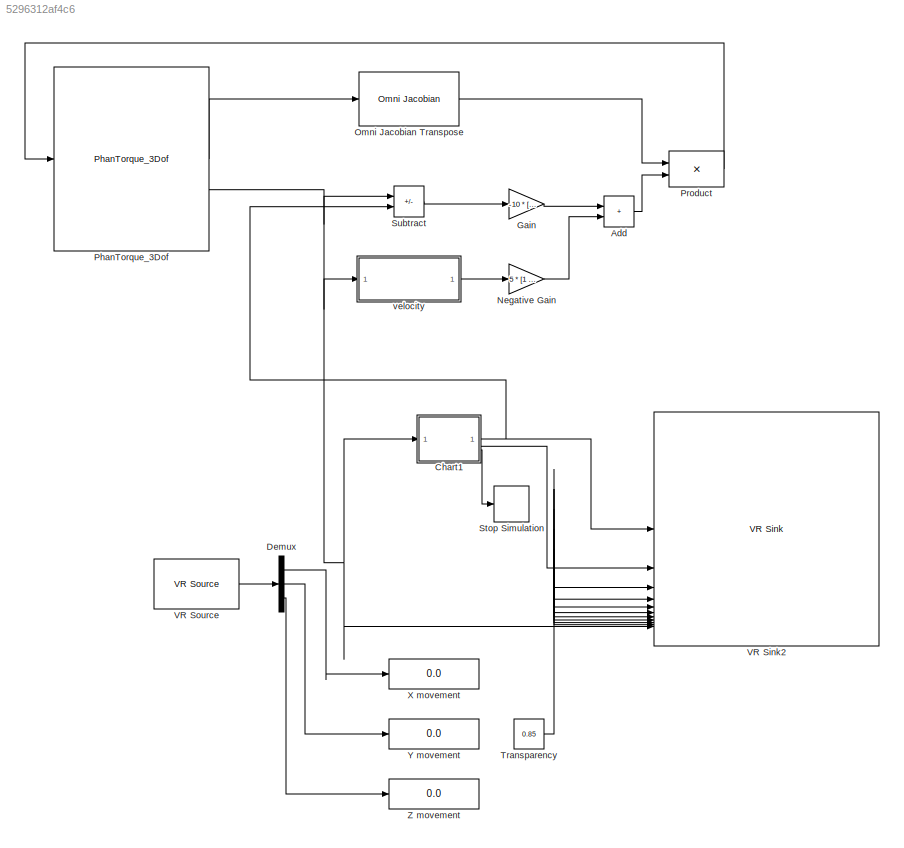
MODEL slx_5296312af4c6
KIND model
CONFIG AbsTol = auto
CONFIG EnableMultiTasking = off
CONFIG FixedStep = 0.001
CONFIG MaxStep = auto
CONFIG MinStep = auto
CONFIG RelTol = 1e-3
CONFIG SampleTimeConstraint = Unconstrained
CONFIG SolverName = FixedStepDiscrete
CONFIG StartTime = 0.0
CONFIG StopTime = inf
BLOCK [Sum] Add
  IconShape = rectangular
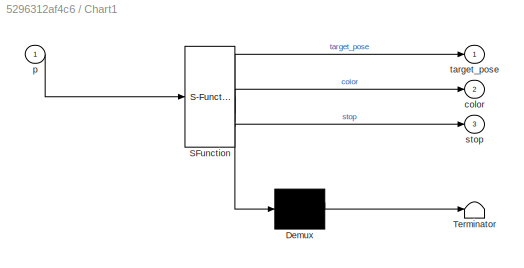
BLOCK [SubSystem] Chart1
  ErrorFcn = Stateflow.Translate.translate
  PermitHierarchicalResolution = ExplicitOnly
  SFBlockType = Chart
  TreatAsAtomicUnit = on
BLOCK [Demux] Chart1/ Demux 
  Outputs = 1
BLOCK [S-Function] Chart1/ SFunction 
  EnableBusSupport = on
  FunctionName = sf_sfun
  PortCounts = [1 4]
  SFcnIsStateOwnerBlock = off
  SFunctionDeploymentMode = off
  Tag = Stateflow S-Function 1
BLOCK [Terminator] Chart1/ Terminator 
BLOCK [Outport] Chart1/color
  Port = 2
BLOCK [Inport] Chart1/p
BLOCK [Outport] Chart1/stop
  Port = 3
BLOCK [Outport] Chart1/target_pose
BLOCK [Demux] Demux
  Outputs = 3
BLOCK [Gain] Gain
  Gain = -10 * [1 0 0; 0 1 0; 0 0 0]
  Multiplication = Matrix(K*u)
BLOCK [Gain] Negative Gain
  Gain = 5 * [1 0 0; 0 -1 0; 0 0 0]
  Multiplication = Matrix(K*u)
BLOCK [Reference] Omni Jacobian Transpose  REF=PhanTorque_3Dof_Library_64Bits/Omni Jacobian
  SourceBlock = PhanTorque_3Dof_Library_64Bits/Omni Jacobian
BLOCK [Reference] PhanTorque_3Dof  REF=PhanTorque_3Dof_Library_64Bits/PhanTorque_3Dof
  SourceBlock = PhanTorque_3Dof_Library_64Bits/PhanTorque_3Dof
BLOCK [Product] Product
  Multiplication = Matrix(*)
BLOCK [Stop] Stop Simulation
BLOCK [Sum] Subtract
  IconShape = rectangular
  Inputs = +-
BLOCK [Constant] Transparency
  Value = 0.85
BLOCK [Reference] VR Sink2  REF=vrlib/VR Sink
  InstantiateOnLoad = on
  SourceBlock = vrlib/VR Sink
  SourceType = Virtual Reality Sink
BLOCK [Reference] VR Source  REF=vrlib/VR Source
  InstantiateOnLoad = on
  SourceBlock = vrlib/VR Source
  SourceType = Virtual Reality Source
BLOCK [Display] X movement
  Decimation = 1
BLOCK [Display] Y movement
  Decimation = 1
BLOCK [Display] Z movement
  Decimation = 1
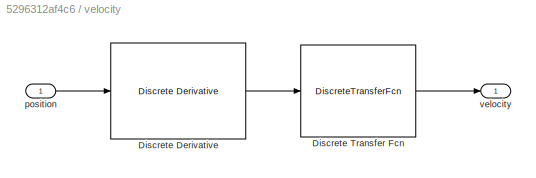
BLOCK [SubSystem] velocity
BLOCK [Reference] velocity/Discrete Derivative  REF=simulink/Discrete/Discrete Derivative
  SourceBlock = simulink/Discrete/Discrete Derivative
  SourceType = Discrete Derivative
BLOCK [DiscreteTransferFcn] velocity/Discrete Transfer Fcn
  Denominator = [1 -(1-0.001/0.2)]
  InputPortMap = u0
  Numerator = [0.001/0.2]
BLOCK [Inport] velocity/position
BLOCK [Outport] velocity/velocity
  VectorParamsAs1DForOutWhenUnconnected = off
LINE Add:1 -> Product:2
NET Chart1:1 -> Subtract:2, VR Sink2:1
LINE Chart1:2 -> VR Sink2:2
LINE Chart1:3 -> Stop Simulation:1
LINE Demux:1 -> X movement:1
LINE Demux:2 -> Y movement:1
LINE Demux:3 -> Z movement:1
LINE Gain:1 -> Add:1
LINE Negative Gain:1 -> Add:2
LINE Omni Jacobian Transpose:1 -> Product:1
LINE PhanTorque_3Dof:1 -> Omni Jacobian Transpose:1
NET PhanTorque_3Dof:2 -> Chart1:1, Subtract:1, VR Sink2:11, velocity:1
LINE Product:1 -> PhanTorque_3Dof:1
LINE Subtract:1 -> Gain:1
NET Transparency:1 -> VR Sink2:10, VR Sink2:3, VR Sink2:4, VR Sink2:5, VR Sink2:6, VR Sink2:7, VR Sink2:8, VR Sink2:9
LINE VR Source:1 -> Demux:1
LINE velocity/Discrete Derivative:1 -> velocity/Discrete Transfer Fcn:1
LINE velocity/Discrete Transfer Fcn:1 -> velocity/velocity:1
LINE velocity/position:1 -> velocity/Discrete Derivative:1
LINE velocity:1 -> Negative Gain:1
note: NET lines group one-source signal fan-out (src -> all destinations, sorted); 1:1 wires keep LINE
CHART Chart1 states=7 transitions=10
  STATE_LABEL 'initial\nentry:\nstop = 0;\nradius=0.1;\ncounter=0;\nangle_matrix=[0 pi/4 pi/2 3/4*pi pi 5/4*pi 3/2*pi 7/4*pi];\n% Ensure that each unique angle is included at least once and adding two other angles taken randomly\nrandom_angles = [angle_matrix(randperm(length(angle_matrix), 8)) angle_matrix(randi(8)) angle_matrix(randi(8))];\n'
  STATE_LABEL 'rand_angle\nangle = random_angles(counter+1);'
  STATE_LABEL 'new_target\nentry:\ncolor=[1 0 0];\ntarget_pose=radius*[cos(angle); sin(angle); 0];\nerr=norm(p(1:2)-target_pose(1:2));\nduring:\nerr=norm(p(1:2)-target_pose(1:2));\n'
  STATE_LABEL 'feedback\nentry:\ncolor=[0 0 1];\nduring:\nerr=norm(p(1:2)-target_pose(1:2));\n'
  STATE_LABEL "back\nentry:\ntarget_pose=[0 0 0]';\ncolor=[1 0 0];\nduring:\nerr=norm(p(1:2)-target_pose(1:2));\n"
  STATE_LABEL 'feedback2\nentry:\ncolor=[0 0 1];\nduring:\nerr=norm(p(1:2)-target_pose(1:2));\n'
  STATE_LABEL 'finish\nstop = 1;\nend'
CHART  states=0 transitions=0
